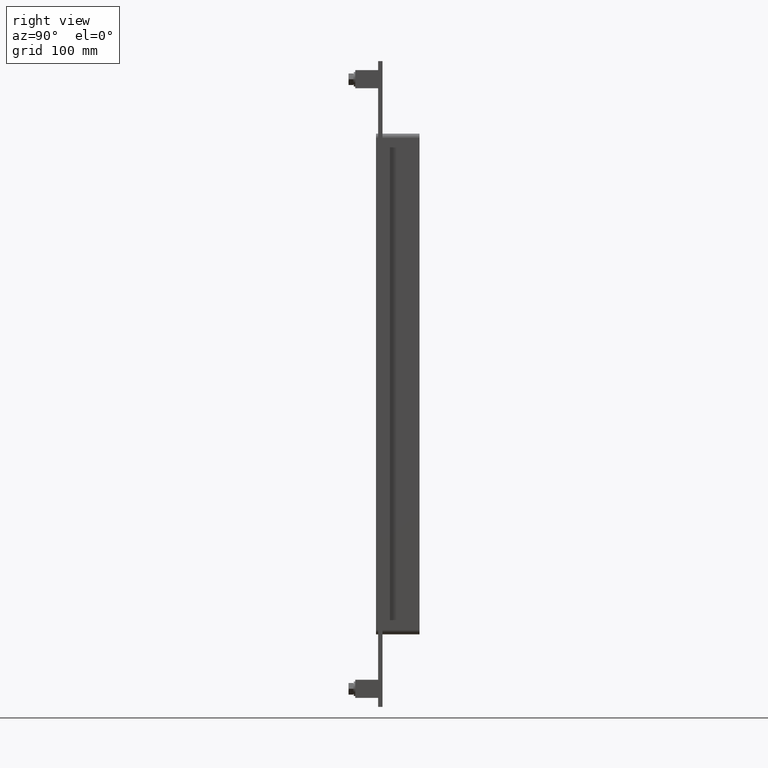
[diagram: clean part render]
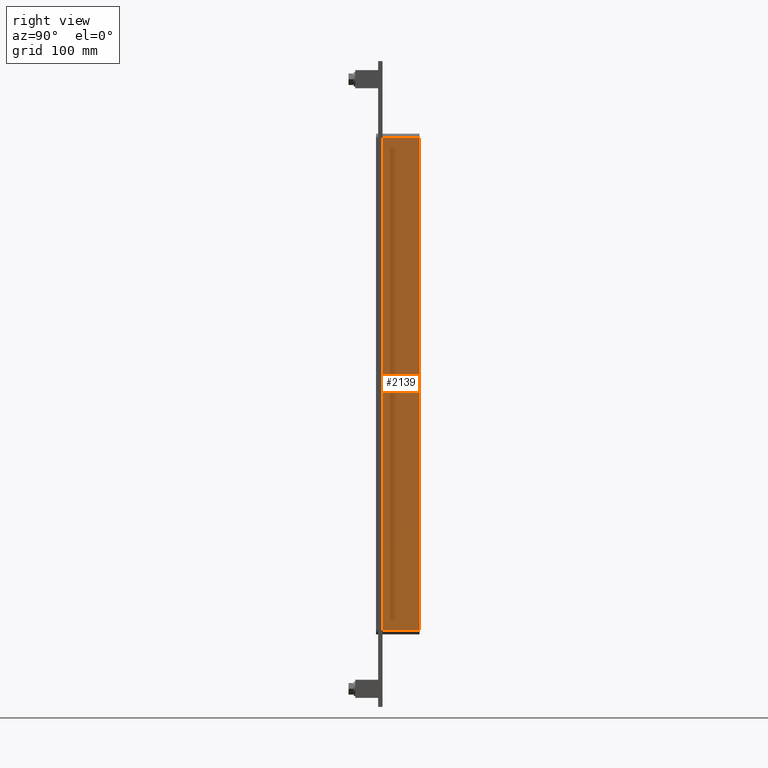
[diagram: same view with one face highlighted and labeled with its STEP entity id]
A machine part, right view. The second image highlights one B-rep face of the part: STEP entity #2139.
In plain terms, the highlighted planar face has unit normal (1, 0, 0).
Its self-contained STEP definition (entity closure, byte-faithful):
#1098=CARTESIAN_POINT('',(131.5,57.0,339.00000000000011));
#1099=VERTEX_POINT('',#1098);
#1107=CARTESIAN_POINT('',(131.5,57.0,-338.99999999999989));
#1108=VERTEX_POINT('',#1107);
#1109=CARTESIAN_POINT('',(131.5,57.0,339.00000000000011));
#1110=DIRECTION('',(0.0,0.0,-1.0));
#1111=VECTOR('',#1110,678.0);
#1112=LINE('',#1109,#1111);
#1113=EDGE_CURVE('',#1099,#1108,#1112,.T.);
#1478=CARTESIAN_POINT('',(131.5,6.000000000000001,-338.99999999999989));
#1479=VERTEX_POINT('',#1478);
#1487=CARTESIAN_POINT('',(131.5,6.000000000000001,339.00000000000011));
#1488=VERTEX_POINT('',#1487);
#1489=CARTESIAN_POINT('',(131.5,6.000000000000001,339.00000000000011));
#1490=DIRECTION('',(0.0,0.0,-1.0));
#1491=VECTOR('',#1490,678.0);
#1492=LINE('',#1489,#1491);
#1493=EDGE_CURVE('',#1488,#1479,#1492,.T.);
#1801=CARTESIAN_POINT('',(131.5,57.0,-338.99999999999989));
#1802=DIRECTION('',(0.0,-1.0,0.0));
#1803=VECTOR('',#1802,51.0);
#1804=LINE('',#1801,#1803);
#1805=EDGE_CURVE('',#1108,#1479,#1804,.T.);
#2117=CARTESIAN_POINT('',(131.5,6.000000000000001,339.00000000000011));
#2118=DIRECTION('',(0.0,1.0,0.0));
#2119=VECTOR('',#2118,51.0);
#2120=LINE('',#2117,#2119);
#2121=EDGE_CURVE('',#1488,#1099,#2120,.T.);
#2128=CARTESIAN_POINT('',(131.5,0.0,345.00000000000011));
#2129=DIRECTION('',(1.0,0.0,0.0));
#2130=DIRECTION('',(0.0,0.0,-1.0));
#2131=AXIS2_PLACEMENT_3D('',#2128,#2129,#2130);
#2132=PLANE('',#2131);
#2133=ORIENTED_EDGE('',*,*,#1493,.T.);
#2134=ORIENTED_EDGE('',*,*,#1805,.F.);
#2135=ORIENTED_EDGE('',*,*,#1113,.F.);
#2136=ORIENTED_EDGE('',*,*,#2121,.F.);
#2137=EDGE_LOOP('',(#2133,#2134,#2135,#2136));
#2138=FACE_OUTER_BOUND('',#2137,.T.);
#2139=ADVANCED_FACE('',(#2138),#2132,.T.);